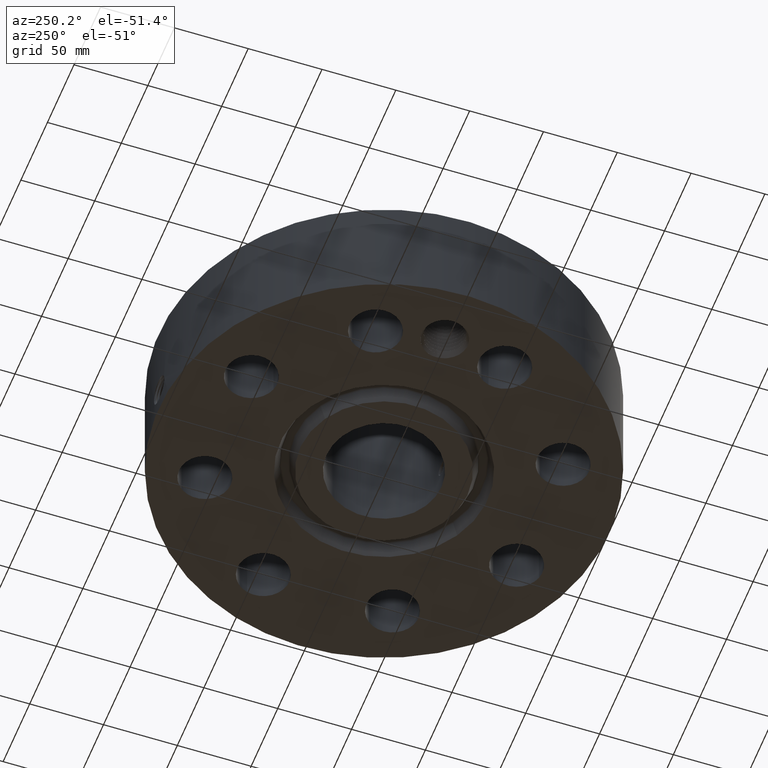
[diagram: clean part render]
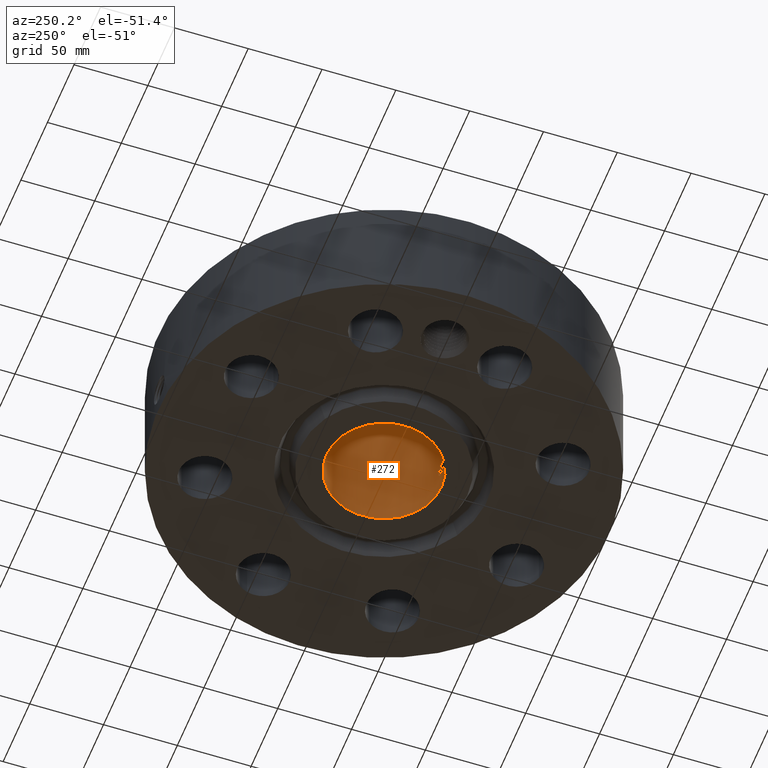
[diagram: same view with one face highlighted and labeled with its STEP entity id]
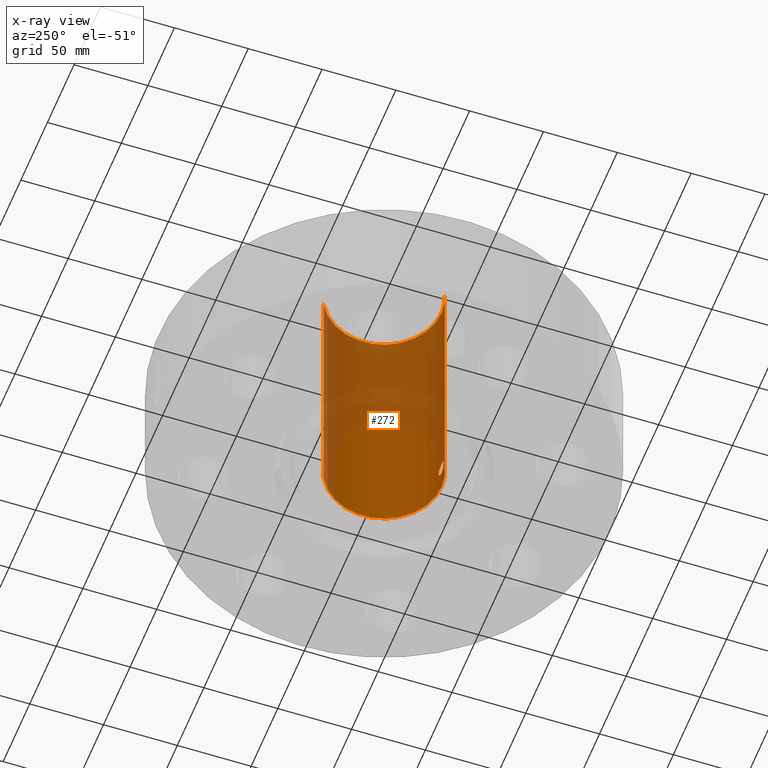
[diagram: x-ray of the same camera — body ghosted, the highlighted face saturated]
A machine part, auxiliary view. The second image highlights one B-rep face of the part: STEP entity #272.
The next image is the same camera in x-ray: the body ghosted, the highlighted face saturated — about 56% of this face is hidden behind the body in this view.
In plain terms, the highlighted cylindrical surface (partial cylindrical patch) has radius 38.9636 mm, axis along (0, 0, -1).
Its self-contained STEP definition (entity closure, byte-faithful):
#232=AXIS2_PLACEMENT_3D('Cylinder Axis2P3D',#229,#230,#231) ;
#236=AXIS2_PLACEMENT_3D('Circle Axis2P3D',#234,#235,$) ;
#252=AXIS2_PLACEMENT_3D('Circle Axis2P3D',#250,#251,$) ;
#81=CARTESIAN_POINT('Control Point',(0.164546730355,-1.52514929549,0.660107711514)) ;
#82=CARTESIAN_POINT('Control Point',(0.153730987743,-1.52631619443,0.640309627461)) ;
#83=CARTESIAN_POINT('Control Point',(0.139943186454,-1.52770674957,0.622148368884)) ;
#84=CARTESIAN_POINT('Control Point',(0.123507726727,-1.52917957955,0.60620810049)) ;
#85=CARTESIAN_POINT('Control Point',(0.0771300885973,-1.53257507664,0.573187364802)) ;
#86=CARTESIAN_POINT('Control Point',(0.0211174071746,-1.53443806911,0.55899750248)) ;
#87=CARTESIAN_POINT('Control Point',(-0.0139157219716,-1.53452842874,0.558336537334)) ;
#88=CARTESIAN_POINT('Control Point',(-0.0704491807954,-1.53291709536,0.57041622146)) ;
#89=CARTESIAN_POINT('Control Point',(-0.118051632209,-1.52962024179,0.601691355047)) ;
#90=CARTESIAN_POINT('Control Point',(-0.135083682033,-1.52815406725,0.617020217171)) ;
#91=CARTESIAN_POINT('Control Point',(-0.174443702991,-1.52429835121,0.665045609697)) ;
#92=CARTESIAN_POINT('Control Point',(-0.192228397786,-1.52190251821,0.726011242429)) ;
#93=CARTESIAN_POINT('Control Point',(-0.192989867535,-1.52179280137,0.76682736587)) ;
#94=CARTESIAN_POINT('Control Point',(-0.183177815637,-1.52313920758,0.805788315641)) ;
#95=CARTESIAN_POINT('Control Point',(-0.164546730355,-1.52514929549,0.839892288492)) ;
#96=CARTESIAN_POINT('Vertex',(0.164546730355,-1.52514929549,0.660107711514)) ;
#98=CARTESIAN_POINT('Vertex',(-0.164546730355,-1.52514929549,0.839892288492)) ;
#206=CARTESIAN_POINT('Control Point',(-0.164546730355,-1.52514929549,0.839892288492)) ;
#207=CARTESIAN_POINT('Control Point',(-0.15373098774,-1.52631619443,0.85969037255)) ;
#208=CARTESIAN_POINT('Control Point',(-0.139943186447,-1.52770674957,0.877851631132)) ;
#209=CARTESIAN_POINT('Control Point',(-0.123507726736,-1.52917957955,0.89379189951)) ;
#210=CARTESIAN_POINT('Control Point',(-0.0771300885998,-1.53257507664,0.926812635205)) ;
#211=CARTESIAN_POINT('Control Point',(-0.0211174071681,-1.53443806911,0.941002497527)) ;
#212=CARTESIAN_POINT('Control Point',(0.0139157219674,-1.53452842875,0.941663462674)) ;
#213=CARTESIAN_POINT('Control Point',(0.0704491807996,-1.53291709536,0.929583778546)) ;
#214=CARTESIAN_POINT('Control Point',(0.118051632219,-1.52962024179,0.898308644952)) ;
#215=CARTESIAN_POINT('Control Point',(0.135083682027,-1.52815406725,0.882979782843)) ;
#216=CARTESIAN_POINT('Control Point',(0.174443702986,-1.52429835122,0.834954390317)) ;
#217=CARTESIAN_POINT('Control Point',(0.192228397783,-1.52190251821,0.773988757586)) ;
#218=CARTESIAN_POINT('Control Point',(0.192989867532,-1.52179280137,0.733172634126)) ;
#219=CARTESIAN_POINT('Control Point',(0.183177815635,-1.52313920758,0.694211684361)) ;
#220=CARTESIAN_POINT('Control Point',(0.164546730355,-1.52514929549,0.660107711514)) ;
#229=CARTESIAN_POINT('Axis2P3D Location',(0.,0.,3.49750000001)) ;
#234=CARTESIAN_POINT('Axis2P3D Location',(0.,0.,6.99500000003)) ;
#238=CARTESIAN_POINT('Vertex',(0.735438776222,1.34621164995,6.99500000003)) ;
#240=CARTESIAN_POINT('Vertex',(-0.735438776222,-1.34621164995,6.99500000003)) ;
#243=CARTESIAN_POINT('Line Origine',(0.735438776222,1.34621164995,3.49750000001)) ;
#247=CARTESIAN_POINT('Vertex',(0.735438776222,1.34621164995,-7.27327209833E-015)) ;
#250=CARTESIAN_POINT('Axis2P3D Location',(0.,0.,-7.83275456743E-015)) ;
#254=CARTESIAN_POINT('Vertex',(-0.735438776222,-1.34621164995,-7.27327209833E-015)) ;
#257=CARTESIAN_POINT('Line Origine',(-0.735438776222,-1.34621164995,3.49750000001)) ;
#230=DIRECTION('Axis2P3D Direction',(0.,0.,-0.0393700787402)) ;
#231=DIRECTION('Axis2P3D XDirection',(-0.0188750212049,-0.0345504945626,0.)) ;
#235=DIRECTION('Axis2P3D Direction',(0.,0.,-0.0393700787402)) ;
#244=DIRECTION('Vector Direction',(0.,0.,-0.0393700787402)) ;
#251=DIRECTION('Axis2P3D Direction',(0.,0.,-0.0393700787402)) ;
#258=DIRECTION('Vector Direction',(0.,0.,-0.0393700787402)) ;
#245=VECTOR('Line Direction',#244,0.0393700787402) ;
#259=VECTOR('Line Direction',#258,0.0393700787402) ;
#263=ORIENTED_EDGE('',*,*,#242,.F.) ;
#264=ORIENTED_EDGE('',*,*,#249,.T.) ;
#265=ORIENTED_EDGE('',*,*,#256,.T.) ;
#266=ORIENTED_EDGE('',*,*,#261,.F.) ;
#269=ORIENTED_EDGE('',*,*,#100,.F.) ;
#270=ORIENTED_EDGE('',*,*,#221,.F.) ;
#271=FACE_BOUND('',#268,.T.) ;
#272=ADVANCED_FACE('PartBody',(#267,#271),#233,.F.) ;
#80=B_SPLINE_CURVE_WITH_KNOTS('',5,(#81,#82,#83,#84,#85,#86,#87,#88,#89,#90,#91,#92,#93,#94,#95),.UNSPECIFIED.,.F.,.U.,(6,3,3,3,6),(0.,4.05727165964,10.1291862367,14.1895477943,21.1785615878),.UNSPECIFIED.) ;
#205=B_SPLINE_CURVE_WITH_KNOTS('',5,(#206,#207,#208,#209,#210,#211,#212,#213,#214,#215,#216,#217,#218,#219,#220),.UNSPECIFIED.,.F.,.U.,(6,3,3,3,6),(0.,4.0572716607,10.1291862383,14.1895477968,21.1785615894),.UNSPECIFIED.) ;
#237=CIRCLE('generated circle',#236,1.53400000001) ;
#253=CIRCLE('generated circle',#252,1.53400000001) ;
#233=CYLINDRICAL_SURFACE('generated cylinder',#232,1.53400000001) ;
#100=EDGE_CURVE('',#97,#99,#80,.T.) ;
#221=EDGE_CURVE('',#99,#97,#205,.T.) ;
#242=EDGE_CURVE('',#239,#241,#237,.T.) ;
#249=EDGE_CURVE('',#239,#248,#246,.T.) ;
#256=EDGE_CURVE('',#248,#255,#253,.T.) ;
#261=EDGE_CURVE('',#241,#255,#260,.T.) ;
#262=EDGE_LOOP('',(#263,#264,#265,#266)) ;
#268=EDGE_LOOP('',(#269,#270)) ;
#267=FACE_OUTER_BOUND('',#262,.T.) ;
#246=LINE('Line',#243,#245) ;
#260=LINE('Line',#257,#259) ;
#97=VERTEX_POINT('',#96) ;
#99=VERTEX_POINT('',#98) ;
#239=VERTEX_POINT('',#238) ;
#241=VERTEX_POINT('',#240) ;
#248=VERTEX_POINT('',#247) ;
#255=VERTEX_POINT('',#254) ;